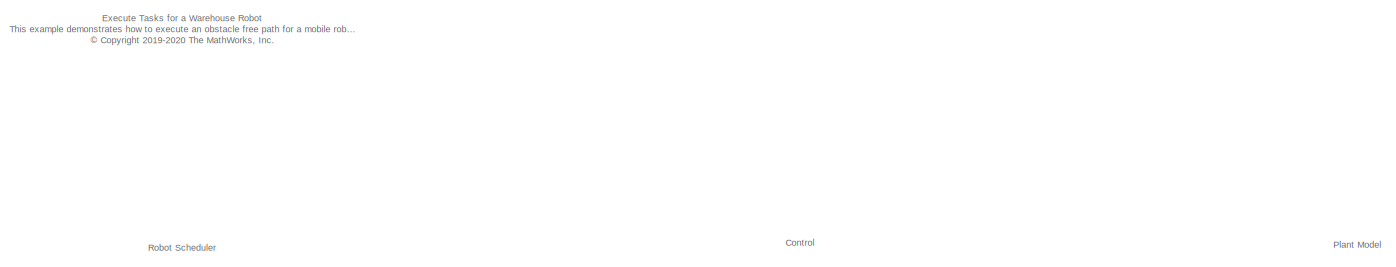
[diagram: root canvas - part 1/3, full width, top band]
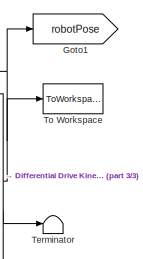
[diagram: root canvas - part 2/3, middle right region]
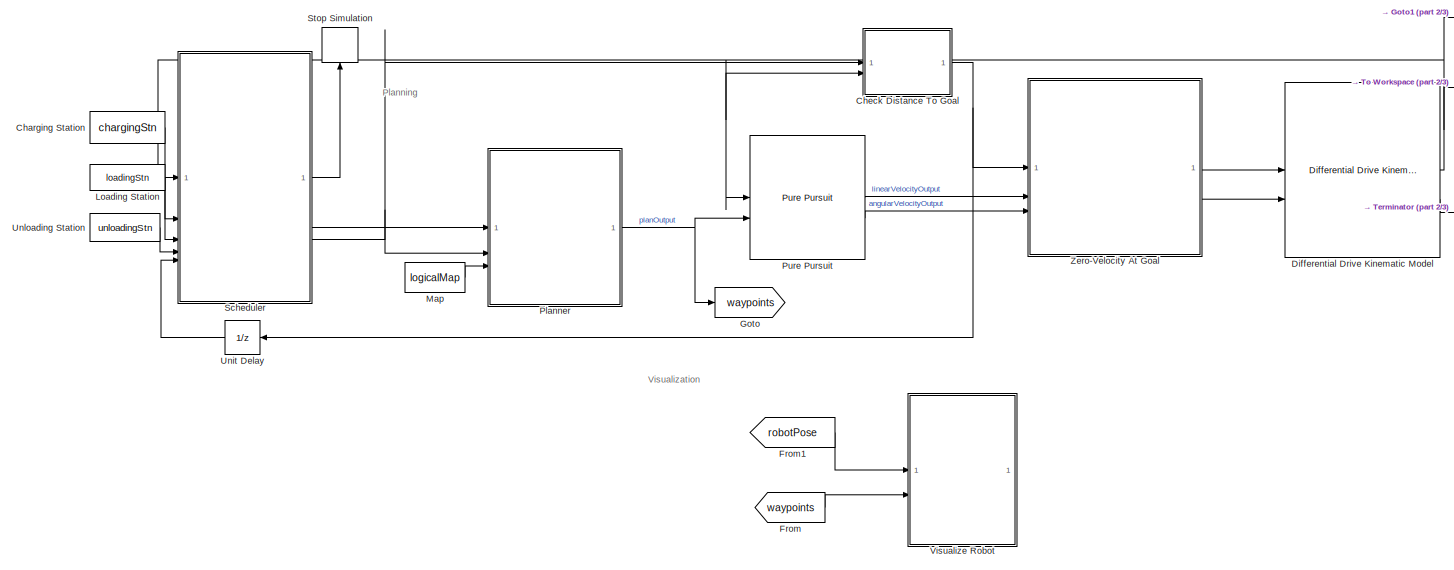
[diagram: root canvas - part 3/3, full width, middle band]
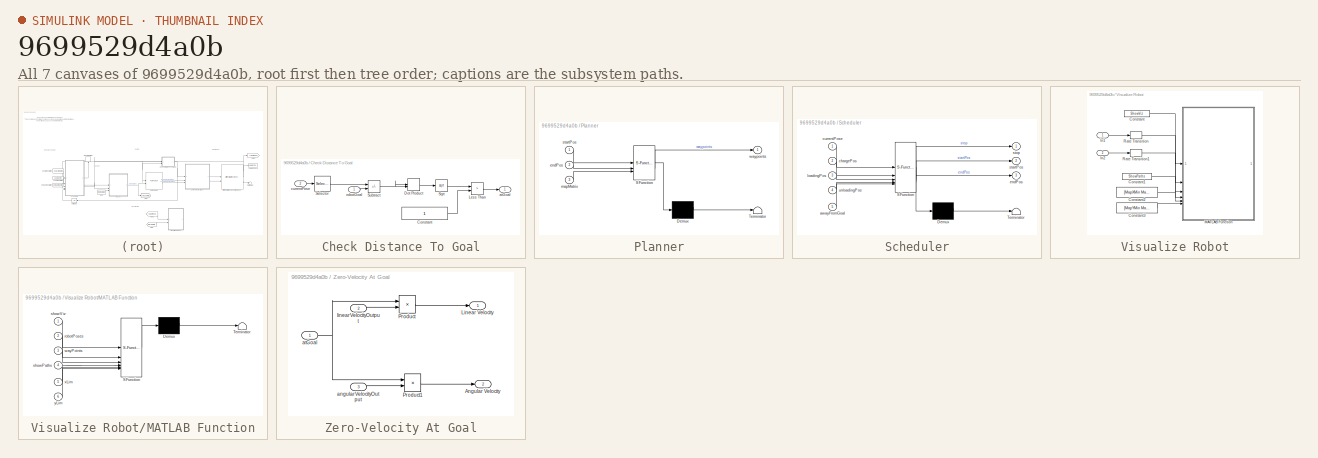
[diagram: thumbnail index - all 7 canvases of the model, root first then tree order]
MODEL slx_9699529d4a0b
KIND model
CONFIG AbsTol = auto
CONFIG EnableMultiTasking = off
CONFIG FixedStep = 0.1
CONFIG MaxStep = auto
CONFIG MinStep = auto
CONFIG RelTol = 1e-3
CONFIG SampleTimeConstraint = Unconstrained
CONFIG SolverName = FixedStepAuto
CONFIG StartTime = 0.0
CONFIG StopTime = inf
WORKSPACE source: mxarray member
WORKSPACE start = [2 8]
BLOCK [Constant] Charging Station 
  SampleTime = 1
  Value = chargingStn
BLOCK [SubSystem] Check Distance To Goal
BLOCK [Constant] Check Distance To Goal/Constant
BLOCK [DotProduct] Check Distance To Goal/Dot Product
  OutDataTypeStr = Inherit: Inherit via internal rule
BLOCK [RelationalOperator] Check Distance To Goal/Less Than
  InputSameDT = off
  Operator = >
  OutDataTypeStr = boolean
  RndMeth = Simplest
BLOCK [Selector] Check Distance To Goal/Selector
  IndexOptions = Index vector (dialog)
  Indices = [1 2]
  InputPortWidth = 3
  OutputSizes = 1
BLOCK [Sqrt] Check Distance To Goal/Sqrt
BLOCK [Sum] Check Distance To Goal/Subtract
  IconShape = rectangular
  Inputs = +-
BLOCK [Outport] Check Distance To Goal/atGoal
BLOCK [Inport] Check Distance To Goal/currentPose
  Port = 2
BLOCK [Inport] Check Distance To Goal/robotGoal
BLOCK [Reference] Differential Drive Kinematic Model   REF=robotmobilelib/Differential Drive Kinematic Model
  SourceBlock = robotmobilelib/Differential Drive Kinematic Model
  SourceType = Differential Drive Kinematic Model
BLOCK [From] From
  GotoTag = waypoints
BLOCK [From] From1
  GotoTag = robotPose
BLOCK [Goto] Goto
  GotoTag = waypoints
BLOCK [Goto] Goto1
  GotoTag = robotPose
BLOCK [Constant] Loading Station
  Value = loadingStn
BLOCK [Constant] Map 
  SampleTime = 1
  Value = logicalMap
BLOCK [SubSystem] Planner
  ErrorFcn = Stateflow.Translate.translate
  PermitHierarchicalResolution = ExplicitOnly
  SFBlockType = MATLAB Function
  TreatAsAtomicUnit = on
BLOCK [Demux] Planner/ Demux 
  Outputs = 1
BLOCK [S-Function] Planner/ SFunction 
  EnableBusSupport = off
  FunctionName = sf_sfun
  PortCounts = [3 2]
  SFcnIsStateOwnerBlock = off
  SFunctionDeploymentMode = off
  Tag = Stateflow S-Function 1
BLOCK [Terminator] Planner/ Terminator 
BLOCK [Inport] Planner/endPos
  Port = 2
BLOCK [Inport] Planner/mapMatrix
  Port = 3
BLOCK [Inport] Planner/startPos
BLOCK [Outport] Planner/waypoints
  VectorParamsAs1DForOutWhenUnconnected = off
BLOCK [Reference] Pure Pursuit  REF=robotalgslib/Pure Pursuit
  SourceBlock = robotalgslib/Pure Pursuit
  SourceType = nav.slalgs.internal.PurePursuit
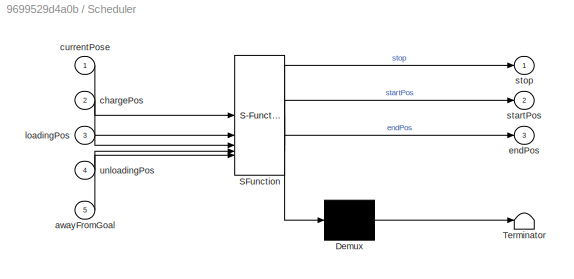
BLOCK [SubSystem] Scheduler
  ErrorFcn = Stateflow.Translate.translate
  PermitHierarchicalResolution = ExplicitOnly
  SFBlockType = Chart
  TreatAsAtomicUnit = on
BLOCK [Demux] Scheduler/ Demux 
  Outputs = 1
BLOCK [S-Function] Scheduler/ SFunction 
  EnableBusSupport = off
  FunctionName = sf_sfun
  PortCounts = [5 4]
  SFcnIsStateOwnerBlock = off
  SFunctionDeploymentMode = off
  Tag = Stateflow S-Function 3
BLOCK [Terminator] Scheduler/ Terminator 
BLOCK [Inport] Scheduler/awayFromGoal
  Port = 5
BLOCK [Inport] Scheduler/chargePos
  Port = 2
BLOCK [Inport] Scheduler/currentPose
BLOCK [Outport] Scheduler/endPos
  Port = 3
  VectorParamsAs1DForOutWhenUnconnected = off
BLOCK [Inport] Scheduler/loadingPos
  Port = 3
BLOCK [Outport] Scheduler/startPos
  Port = 2
  VectorParamsAs1DForOutWhenUnconnected = off
BLOCK [Outport] Scheduler/stop
BLOCK [Inport] Scheduler/unloadingPos
  Port = 4
BLOCK [Stop] Stop Simulation
BLOCK [Terminator] Terminator
BLOCK [ToWorkspace] To Workspace
  FixptAsFi = on
  MaxDataPoints = inf
  SampleTime = -1
  VariableName = Pose
BLOCK [UnitDelay] Unit Delay
  HasFrameUpgradeWarning = on
  SampleTime = -1
BLOCK [Constant] Unloading Station
  SampleTime = 1
  Value = unloadingStn
BLOCK [SubSystem] Visualize Robot
BLOCK [Constant] Visualize Robot/Constant
  Value = ShowViz
BLOCK [Constant] Visualize Robot/Constant1
  Value = ShowPaths
BLOCK [Constant] Visualize Robot/Constant2
  Value = [MapXMin MapXMax]
BLOCK [Constant] Visualize Robot/Constant3
  Value = [MapYMin MapYMax]
BLOCK [Inport] Visualize Robot/In1
BLOCK [Inport] Visualize Robot/In2
  Port = 2
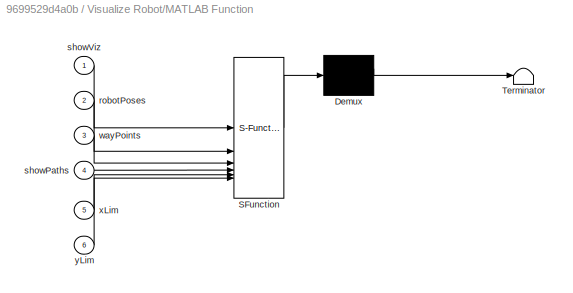
BLOCK [SubSystem] Visualize Robot/MATLAB Function
  ErrorFcn = Stateflow.Translate.translate
  PermitHierarchicalResolution = ExplicitOnly
  SFBlockType = MATLAB Function
  TreatAsAtomicUnit = on
BLOCK [Demux] Visualize Robot/MATLAB Function/ Demux 
  Outputs = 1
BLOCK [S-Function] Visualize Robot/MATLAB Function/ SFunction 
  EnableBusSupport = off
  FunctionName = sf_sfun
  Parameters = ChargingLocation,MeshSelectionIdx,SortingStation,UnloadingStation,logicalMap
  PortCounts = [6 1]
  SFcnIsStateOwnerBlock = off
  SFunctionDeploymentMode = off
  Tag = Stateflow S-Function 2
BLOCK [Terminator] Visualize Robot/MATLAB Function/ Terminator 
BLOCK [Inport] Visualize Robot/MATLAB Function/robotPoses
  Port = 2
BLOCK [Inport] Visualize Robot/MATLAB Function/showPaths
  Port = 4
BLOCK [Inport] Visualize Robot/MATLAB Function/showViz
BLOCK [Inport] Visualize Robot/MATLAB Function/wayPoints
  Port = 3
BLOCK [Inport] Visualize Robot/MATLAB Function/xLim
  Port = 5
BLOCK [Inport] Visualize Robot/MATLAB Function/yLim
  Port = 6
BLOCK [RateTransition] Visualize Robot/Rate Transition
BLOCK [RateTransition] Visualize Robot/Rate Transition1
BLOCK [SubSystem] Zero-Velocity At Goal
BLOCK [Outport] Zero-Velocity At Goal/Angular Velocity
  OutDataTypeStr = double
  Port = 2
BLOCK [Outport] Zero-Velocity At Goal/Linear Velocity
  OutDataTypeStr = double
BLOCK [Product] Zero-Velocity At Goal/Product
BLOCK [Product] Zero-Velocity At Goal/Product1
BLOCK [Inport] Zero-Velocity At Goal/angularVelocityOutput
  Port = 3
BLOCK [Inport] Zero-Velocity At Goal/atGoal
BLOCK [Inport] Zero-Velocity At Goal/linearVelocityOutput
  Port = 2
ANNOTATION (root): E xecute Tasks for a Warehouse Robot This example demonstrates how to execute an obstacle free path for a mobile robot between three locations on a given map. The robot is expected to visit the three locations in a warehouse: a charging station, loading station, and unloading location. The sequence in which these locations are visited are dictated by a scheduler. The scheduler gives each robot a g...<+437ch>
ANNOTATION (root): Control
ANNOTATION (root): Planning
ANNOTATION (root): Plant Model
ANNOTATION (root): Robot Scheduler
ANNOTATION (root): Visualization
LINE Charging Station :1 -> Scheduler:2
LINE Check Distance To Goal/Constant:1 -> Check Distance To Goal/Less Than:2
LINE Check Distance To Goal/Dot Product:1 -> Check Distance To Goal/Sqrt:1
LINE Check Distance To Goal/Less Than:1 -> Check Distance To Goal/atGoal:1
LINE Check Distance To Goal/Selector:1 -> Check Distance To Goal/Subtract:1
LINE Check Distance To Goal/Sqrt:1 -> Check Distance To Goal/Less Than:1
NET Check Distance To Goal/Subtract:1 -> Check Distance To Goal/Dot Product:1, Check Distance To Goal/Dot Product:2
LINE Check Distance To Goal/currentPose:1 -> Check Distance To Goal/Selector:1
LINE Check Distance To Goal/robotGoal:1 -> Check Distance To Goal/Subtract:2
NET Check Distance To Goal:1 -> Unit Delay:1, Zero-Velocity At Goal:1
NET Differential Drive Kinematic Model :1 -> Check Distance To Goal:2, Goto1:1, Pure Pursuit:1, Scheduler:1, To Workspace:1
LINE Differential Drive Kinematic Model :2 -> Terminator:1
LINE From1:1 -> Visualize Robot:1
LINE From:1 -> Visualize Robot:2
LINE Loading Station:1 -> Scheduler:3
LINE Map :1 -> Planner:3
NET Planner:1 -> Goto:1, Pure Pursuit:2
LINE Pure Pursuit:1 -> Zero-Velocity At Goal:2
LINE Pure Pursuit:2 -> Zero-Velocity At Goal:3
LINE Scheduler:1 -> Stop Simulation:1
LINE Scheduler:2 -> Planner:1
NET Scheduler:3 -> Check Distance To Goal:1, Planner:2
LINE Unit Delay:1 -> Scheduler:5
LINE Unloading Station:1 -> Scheduler:4
LINE Visualize Robot/Constant1:1 -> Visualize Robot/MATLAB Function:4
LINE Visualize Robot/Constant2:1 -> Visualize Robot/MATLAB Function:5
LINE Visualize Robot/Constant3:1 -> Visualize Robot/MATLAB Function:6
LINE Visualize Robot/Constant:1 -> Visualize Robot/MATLAB Function:1
LINE Visualize Robot/In1:1 -> Visualize Robot/Rate Transition:1
LINE Visualize Robot/In2:1 -> Visualize Robot/Rate Transition1:1
LINE Visualize Robot/Rate Transition1:1 -> Visualize Robot/MATLAB Function:3
LINE Visualize Robot/Rate Transition:1 -> Visualize Robot/MATLAB Function:2
LINE Zero-Velocity At Goal/Product1:1 -> Zero-Velocity At Goal/Angular Velocity:1
LINE Zero-Velocity At Goal/Product:1 -> Zero-Velocity At Goal/Linear Velocity:1
LINE Zero-Velocity At Goal/angularVelocityOutput:1 -> Zero-Velocity At Goal/Product1:2
NET Zero-Velocity At Goal/atGoal:1 -> Zero-Velocity At Goal/Product1:1, Zero-Velocity At Goal/Product:1
LINE Zero-Velocity At Goal/linearVelocityOutput:1 -> Zero-Velocity At Goal/Product:2
LINE Zero-Velocity At Goal:1 -> Differential Drive Kinematic Model :1
LINE Zero-Velocity At Goal:2 -> Differential Drive Kinematic Model :2
note: NET lines group one-source signal fan-out (src -> all destinations, sorted); 1:1 wires keep LINE
CHART Planner states=1 transitions=1
  STATE_LABEL 'eML_blk_kernel()'
  STATE_LABEL 'SCRIPT:\nfunction waypoints = planning(startPos, endPos, mapMatrix)\n\npersistent waypointsInternal\npersistent prevStartPos\npersistent prevEndPos\n\n% Set constant parameters\nmaxNumNodes = 100;\n\n% Initialize persistent variables that are used downstream\nif isempty(prevStartPos)\n    prevStartPos = startPos;\nend\n\nif isempty(prevEndPos)\n    prevEndPos = endPos;\nend\n\nisNewPath = (~isequal(prevStartPos, sta...<+1031ch>'
CHART Visualize Robot/MATLAB Function states=1 transitions=1
  STATE_LABEL 'eML_blk_kernel()'
  STATE_LABEL "SCRIPT:\nfunction simulationVisualization(showViz, robotPoses, wayPoints, logicalMap, ChargingLocation, UnloadingStation, SortingStation, showPaths, xLim, yLim, MeshSelectionIdx)\n%#codegen\n\n%% Setup\n\ncoder.extrinsic('exampleHelperVisualizeExecuteRobots');\npersistent f\nif isempty(f) && showViz\n    f = figure('units','normalized','outerposition',[0 0 0.75 0.75]);\n    title('Mobile Robot Motion');\n   ...<+615ch>"
CHART Scheduler states=3 transitions=4
  STATE_LABEL "Unloading\nentry, during:\nendPos = unloadingPos';"
  STATE_LABEL "Loading\nentry,during:\nendPos = loadingPos';"
  STATE_LABEL "Charging\nentry, during:\nendPos = chargePos';"
CHART  states=0 transitions=0
CHART  states=0 transitions=0
CHART  states=0 transitions=0
